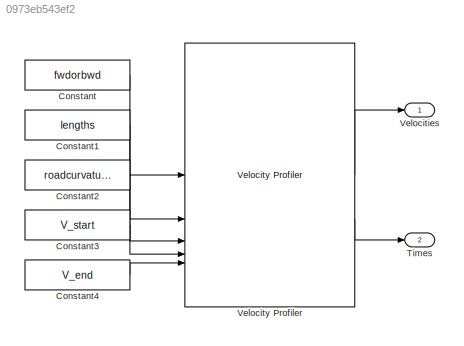
MODEL slx_0973eb543ef2
KIND model
CONFIG AbsTol = auto
CONFIG EnableMultiTasking = off
CONFIG FixedStep = auto
CONFIG MaxStep = auto
CONFIG MinStep = auto
CONFIG RelTol = 1e-3
CONFIG SampleTimeConstraint = Unconstrained
CONFIG SolverName = VariableStepAuto
CONFIG StartTime = 0.0
CONFIG StopTime = 10.0
BLOCK [Constant] Constant
  Value = fwdorbwd
BLOCK [Constant] Constant1
  Value = lengths
BLOCK [Constant] Constant2
  Value = roadcurvatures
BLOCK [Constant] Constant3
  Value = V_start
BLOCK [Constant] Constant4
  Value = V_end
BLOCK [Outport] Times
  Port = 2
  VectorParamsAs1DForOutWhenUnconnected = off
BLOCK [Outport] Velocities
  VectorParamsAs1DForOutWhenUnconnected = off
BLOCK [Reference] Velocity Profiler  REF=drivinglib/Velocity Profiler
  SourceBlock = drivinglib/Velocity Profiler
  SourceType = driving.internal.planning.VelocityProfiler
LINE Constant1:1 -> Velocity Profiler:2
LINE Constant2:1 -> Velocity Profiler:3
LINE Constant3:1 -> Velocity Profiler:4
LINE Constant4:1 -> Velocity Profiler:5
LINE Constant:1 -> Velocity Profiler:1
LINE Velocity Profiler:1 -> Velocities:1
LINE Velocity Profiler:2 -> Times:1
